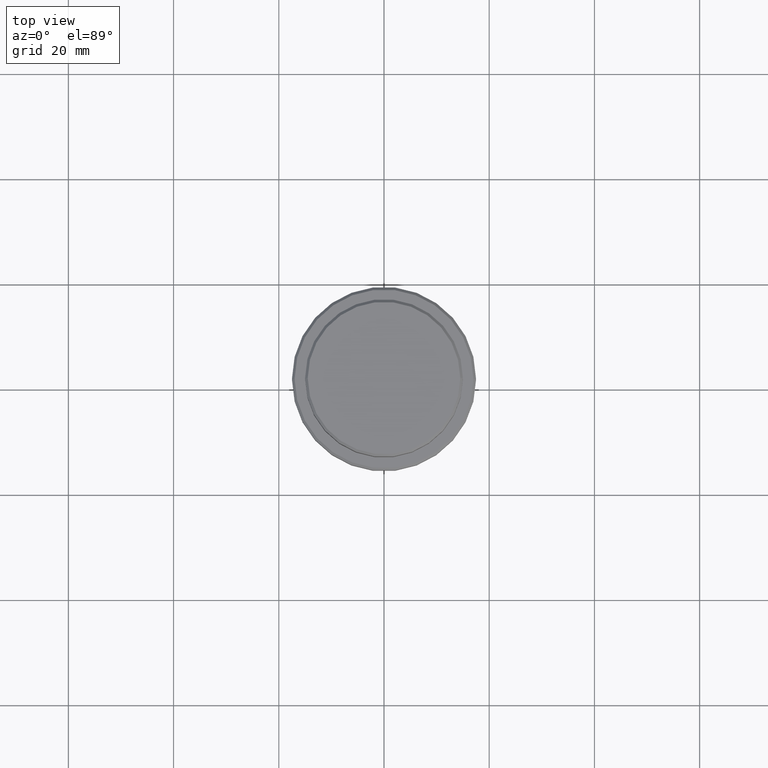
[diagram: clean part render]
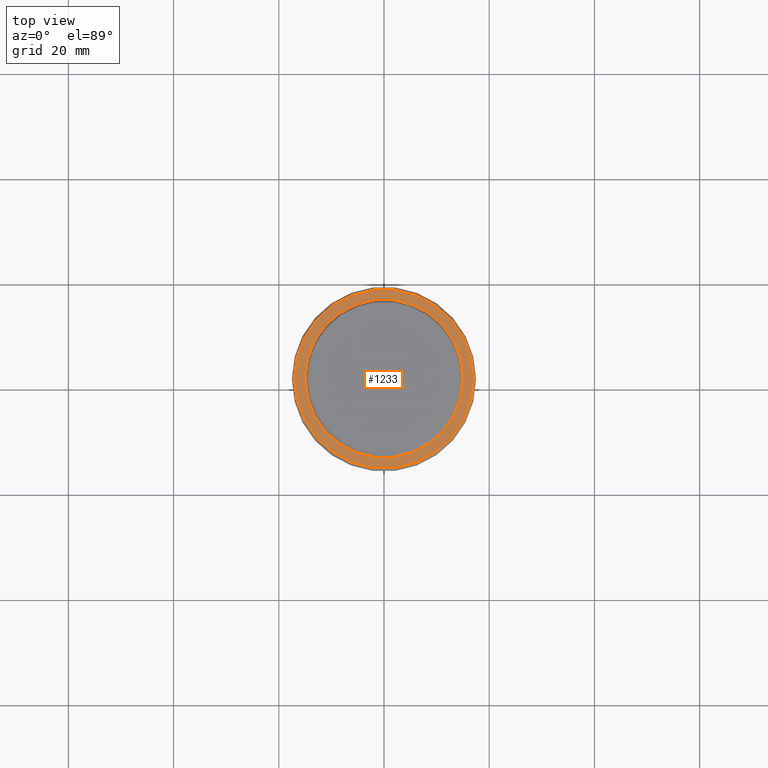
[diagram: same view with one face highlighted and labeled with its STEP entity id]
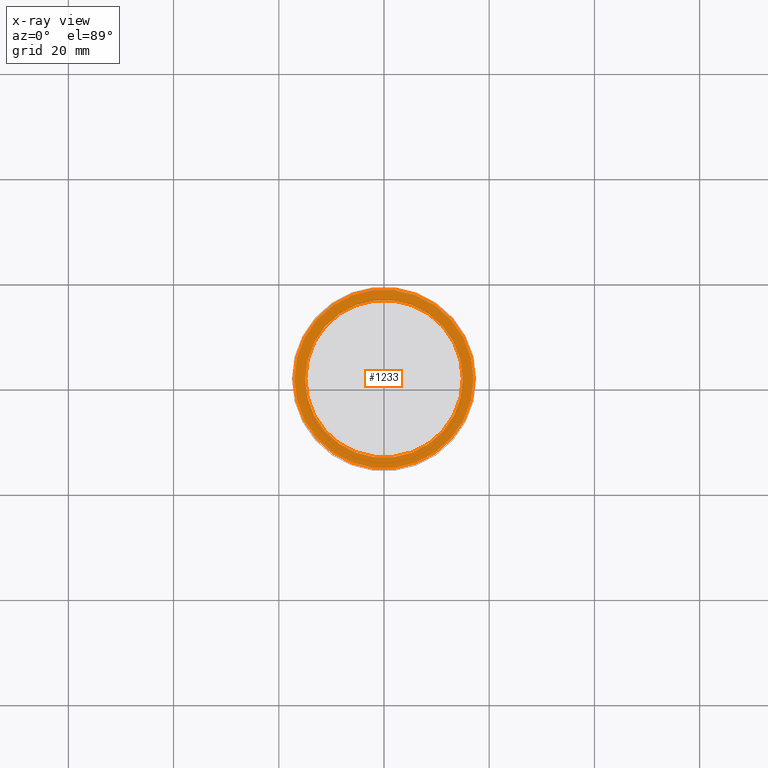
[diagram: x-ray of the same camera — body ghosted, the highlighted face saturated]
A machine part, top view. The second image highlights one B-rep face of the part: STEP entity #1233.
The next image is the same camera in x-ray: the body ghosted, the highlighted face saturated — about 0% of this face is hidden behind the body in this view.
In plain terms, the highlighted planar face has unit normal (0, -0, 1).
Its self-contained STEP definition (entity closure, byte-faithful):
#50 = ORIENTED_EDGE ( 'NONE', *, *, #779, .T. ) ;
#83 = FACE_BOUND ( 'NONE', #756, .T. ) ;
#85 = CIRCLE ( 'NONE', #846, 17.00000000000000000 ) ;
#94 = DIRECTION ( 'NONE',  ( -0.000000000000000000, -0.000000000000000000, 1.000000000000000000 ) ) ;
#99 = CARTESIAN_POINT ( 'NONE',  ( 14.99999999999999289, 0.000000000000000000, -9.000000000000000000 ) ) ;
#116 = CARTESIAN_POINT ( 'NONE',  ( 17.00000000000000000, 2.112515728529184067E-15, -9.000000000000000000 ) ) ;
#247 = DIRECTION ( 'NONE',  ( 0.000000000000000000, 0.000000000000000000, -1.000000000000000000 ) ) ;
#311 = AXIS2_PLACEMENT_3D ( 'NONE', #454, #669, #1109 ) ;
#418 = DIRECTION ( 'NONE',  ( 1.000000000000000000, 0.000000000000000000, 0.000000000000000000 ) ) ;
#432 = FACE_OUTER_BOUND ( 'NONE', #529, .T. ) ;
#454 = CARTESIAN_POINT ( 'NONE',  ( 0.000000000000000000, 0.000000000000000000, -9.000000000000000000 ) ) ;
#460 = CARTESIAN_POINT ( 'NONE',  ( 0.000000000000000000, 0.000000000000000000, -9.000000000000000000 ) ) ;
#503 = EDGE_CURVE ( 'NONE', #1277, #784, #581, .T. ) ;
#510 = CARTESIAN_POINT ( 'NONE',  ( -14.99999999999999289, 1.836970198721028800E-15, -9.000000000000000000 ) ) ;
#527 = DIRECTION ( 'NONE',  ( 1.000000000000000000, 0.000000000000000000, 0.000000000000000000 ) ) ;
#529 = EDGE_LOOP ( 'NONE', ( #50, #1285 ) ) ;
#581 = CIRCLE ( 'NONE', #1124, 17.00000000000000000 ) ;
#598 = VERTEX_POINT ( 'NONE', #510 ) ;
#653 = DIRECTION ( 'NONE',  ( -0.000000000000000000, -0.000000000000000000, 1.000000000000000000 ) ) ;
#666 = CARTESIAN_POINT ( 'NONE',  ( -17.00000000000000000, 0.000000000000000000, -9.000000000000000000 ) ) ;
#669 = DIRECTION ( 'NONE',  ( 0.000000000000000000, 0.000000000000000000, -1.000000000000000000 ) ) ;
#737 = CARTESIAN_POINT ( 'NONE',  ( 0.000000000000000000, 0.000000000000000000, -9.000000000000000000 ) ) ;
#748 = ORIENTED_EDGE ( 'NONE', *, *, #1283, .T. ) ;
#756 = EDGE_LOOP ( 'NONE', ( #748, #973 ) ) ;
#779 = EDGE_CURVE ( 'NONE', #784, #1277, #85, .T. ) ;
#784 = VERTEX_POINT ( 'NONE', #666 ) ;
#822 = CIRCLE ( 'NONE', #311, 14.99999999999999289 ) ;
#846 = AXIS2_PLACEMENT_3D ( 'NONE', #737, #653, #1201 ) ;
#943 = EDGE_CURVE ( 'NONE', #598, #1231, #822, .T. ) ;
#973 = ORIENTED_EDGE ( 'NONE', *, *, #943, .T. ) ;
#986 = CIRCLE ( 'NONE', #1154, 14.99999999999999289 ) ;
#991 = CARTESIAN_POINT ( 'NONE',  ( 0.000000000000000000, 14.49999999999999467, -9.000000000000000000 ) ) ;
#1001 = DIRECTION ( 'NONE',  ( 1.000000000000000000, 0.000000000000000000, 0.000000000000000000 ) ) ;
#1069 = CARTESIAN_POINT ( 'NONE',  ( 0.000000000000000000, 0.000000000000000000, -9.000000000000000000 ) ) ;
#1087 = DIRECTION ( 'NONE',  ( 0.000000000000000000, -0.000000000000000000, 1.000000000000000000 ) ) ;
#1109 = DIRECTION ( 'NONE',  ( 1.000000000000000000, 0.000000000000000000, 0.000000000000000000 ) ) ;
#1124 = AXIS2_PLACEMENT_3D ( 'NONE', #1069, #94, #527 ) ;
#1154 = AXIS2_PLACEMENT_3D ( 'NONE', #460, #247, #1001 ) ;
#1200 = AXIS2_PLACEMENT_3D ( 'NONE', #991, #1087, #418 ) ;
#1201 = DIRECTION ( 'NONE',  ( 1.000000000000000000, 0.000000000000000000, 0.000000000000000000 ) ) ;
#1231 = VERTEX_POINT ( 'NONE', #99 ) ;
#1233 = ADVANCED_FACE ( 'NONE', ( #432, #83 ), #1305, .T. ) ;
#1277 = VERTEX_POINT ( 'NONE', #116 ) ;
#1283 = EDGE_CURVE ( 'NONE', #1231, #598, #986, .T. ) ;
#1285 = ORIENTED_EDGE ( 'NONE', *, *, #503, .T. ) ;
#1305 = PLANE ( 'NONE',  #1200 ) ;